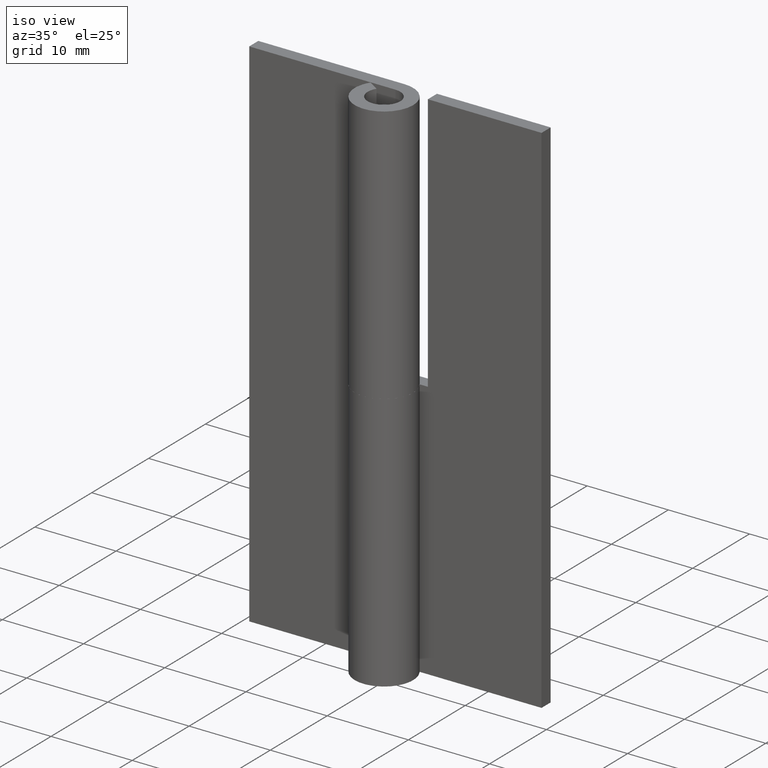
[diagram: clean part render]
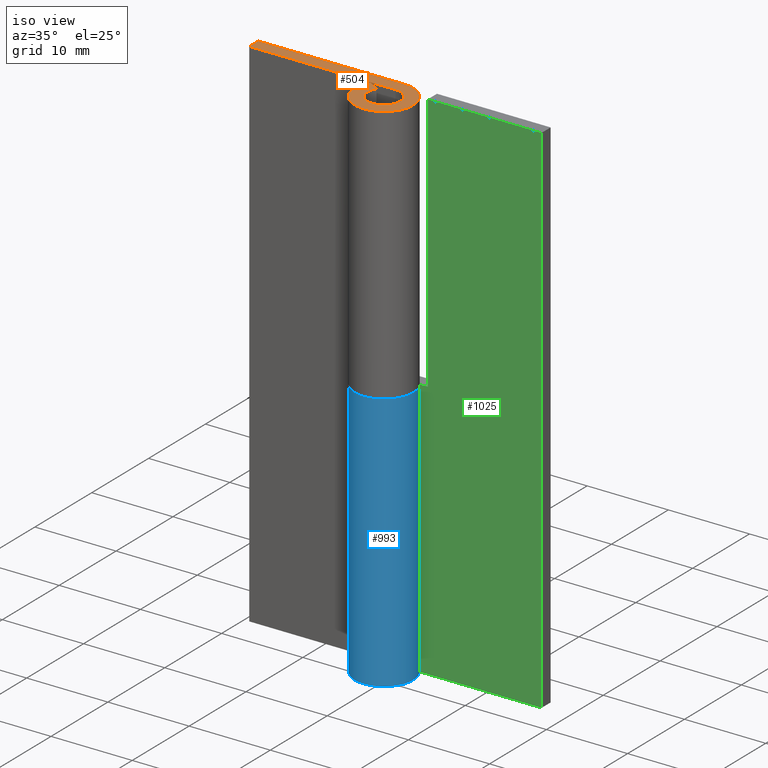
[diagram: same view with three faces highlighted in distinct colors, each labeled with its STEP entity id]
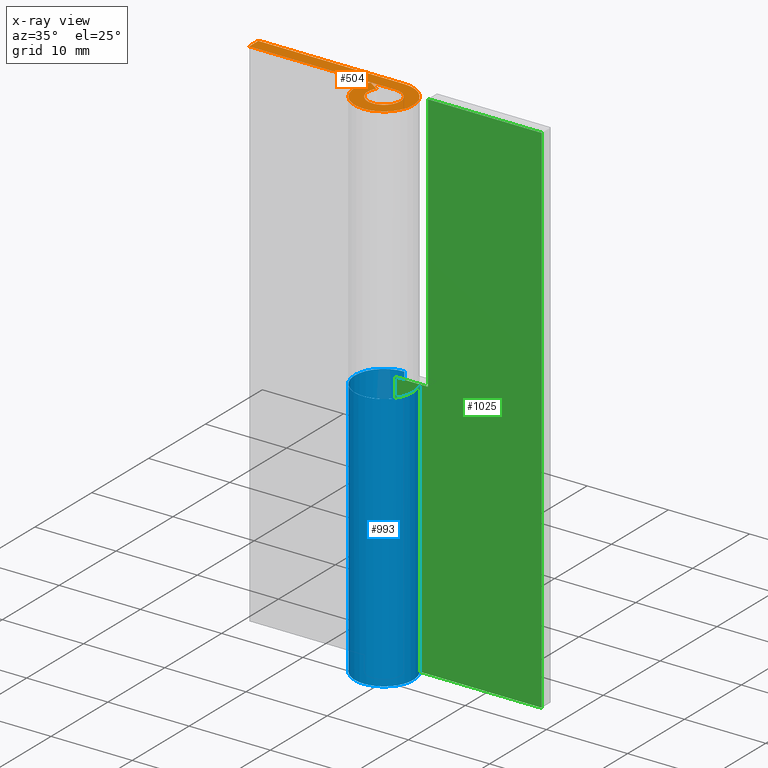
[diagram: x-ray of the same camera — body ghosted, the three highlighted faces saturated]
A machine part, iso view with three faces highlighted in distinct colors.
The next image is the same camera in x-ray (body ghosted, the three faces saturated) — at least one of them is partly hidden behind the body in this view.
Their STEP definitions:

[orange] entity #504 — the highlighted face is a freeform B-spline surface patch.
#427=CARTESIAN_POINT('',(-19.078902570801009,-3.958064993160935,64.000007999999994));
#428=CARTESIAN_POINT('',(4.678555055360605,-3.958064993160935,64.000007999999994));
#429=CARTESIAN_POINT('',(-19.078902570801009,3.959563155749652,64.000007999999994));
#430=CARTESIAN_POINT('',(4.678555055360605,3.959563155749652,64.000007999999994));
#431=B_SPLINE_SURFACE_WITH_KNOTS('',1,1,((#427,#429),(#428,#430)),.UNSPECIFIED.,.F.,.F.,.U.,(2,2),(2,2),(0.0,23.757457626161610),(0.0,7.917628148910588),.UNSPECIFIED.);
#432=CARTESIAN_POINT('',(-1.681186750152670,1.083333333333330,64.000008000000093));
#433=VERTEX_POINT('',#432);
#434=CARTESIAN_POINT('',(-3.026136150274805,1.950000000000000,64.000008000000093));
#435=VERTEX_POINT('',#434);
#436=CARTESIAN_POINT('',(-1.681186750152670,1.083333333333330,64.000008000000093));
#437=CARTESIAN_POINT('',(-3.026136150274805,1.950000000000000,64.000008000000093));
#438=QUASI_UNIFORM_CURVE('',1,(#436,#437),.UNSPECIFIED.,.F.,.U.);
#439=EDGE_CURVE('',#433,#435,#438,.T.);
#440=ORIENTED_EDGE('',*,*,#439,.T.);
#441=CARTESIAN_POINT('',(-0.003794732665983,3.599998000000000,64.000008000000093));
#442=VERTEX_POINT('',#441);
#443=CARTESIAN_POINT('',(-0.003794732665984,3.599997999999999,64.000008000000093));
#444=CARTESIAN_POINT('',(2.794410358292486,3.602947568378865,64.000008000000093));
#445=CARTESIAN_POINT('',(3.487741550519032,0.891997128237027,64.000008000000093));
#446=CARTESIAN_POINT('',(4.181072742745578,-1.818953311904812,64.000008000000093));
#447=CARTESIAN_POINT('',(1.725034387729875,-3.159787391763790,64.000008000000093));
#448=CARTESIAN_POINT('',(-0.731003967285830,-4.500621471622770,64.000008000000093));
#449=CARTESIAN_POINT('',(-2.636417691941365,-2.451387719969765,64.000008000000093));
#450=CARTESIAN_POINT('',(-4.541831416596898,-0.402153968316764,64.000008000000093));
#451=CARTESIAN_POINT('',(-3.026136150274803,1.949999999999999,64.000008000000093));
#459=(BOUNDED_CURVE()B_SPLINE_CURVE(2,(#443,#444,#445,#446,#447,#448,#449,#450,#451),.UNSPECIFIED.,.F.,.U.)B_SPLINE_CURVE_WITH_KNOTS((3,2,2,2,3),(0.0,0.250000000000000,0.500000000000000,0.750000000000000,1.0),.UNSPECIFIED.)CURVE()GEOMETRIC_REPRESENTATION_ITEM()RATIONAL_B_SPLINE_CURVE((1.0,0.789542785308575,1.0,0.789542785308575,1.0,0.789542785308575,1.0,0.789542785308575,1.0))REPRESENTATION_ITEM(''));
#460=EDGE_CURVE('',#442,#435,#459,.T.);
#461=ORIENTED_EDGE('',*,*,#460,.F.);
#462=CARTESIAN_POINT('',(-18.0,3.599998000000000,64.000008000000093));
#463=VERTEX_POINT('',#462);
#464=CARTESIAN_POINT('',(-0.003794732665983,3.599998000000000,64.000008000000093));
#465=CARTESIAN_POINT('',(-18.0,3.599998000000000,64.000008000000093));
#466=QUASI_UNIFORM_CURVE('',1,(#464,#465),.UNSPECIFIED.,.F.,.U.);
#467=EDGE_CURVE('',#442,#463,#466,.T.);
#468=ORIENTED_EDGE('',*,*,#467,.T.);
#469=CARTESIAN_POINT('',(-18.0,2.0,64.000008000000093));
#470=VERTEX_POINT('',#469);
#471=CARTESIAN_POINT('',(-18.0,3.599998000000000,64.000008000000093));
#472=CARTESIAN_POINT('',(-18.0,2.0,64.000008000000093));
#473=QUASI_UNIFORM_CURVE('',1,(#471,#472),.UNSPECIFIED.,.F.,.U.);
#474=EDGE_CURVE('',#463,#470,#473,.T.);
#475=ORIENTED_EDGE('',*,*,#474,.T.);
#476=CARTESIAN_POINT('',(0.0,2.0,64.000008000000093));
#477=VERTEX_POINT('',#476);
#478=CARTESIAN_POINT('',(-18.0,2.0,64.000008000000093));
#479=CARTESIAN_POINT('',(0.0,2.0,64.000008000000093));
#480=QUASI_UNIFORM_CURVE('',1,(#478,#479),.UNSPECIFIED.,.F.,.U.);
#481=EDGE_CURVE('',#470,#477,#480,.T.);
#482=ORIENTED_EDGE('',*,*,#481,.T.);
#483=CARTESIAN_POINT('',(0.0,2.0,64.000008000000093));
#484=CARTESIAN_POINT('',(1.554136556548023,2.000000000000000,64.000008000000079));
#485=CARTESIAN_POINT('',(1.938025359003881,0.494021971027481,64.000008000000093));
#486=CARTESIAN_POINT('',(2.321914161459739,-1.011956057945037,64.000008000000079));
#487=CARTESIAN_POINT('',(0.957427107756340,-1.755942292142122,64.000008000000093));
#488=CARTESIAN_POINT('',(-0.407059945947058,-2.499928526339207,64.000008000000079));
#489=CARTESIAN_POINT('',(-1.465035332114952,-1.361496043202048,64.000008000000093));
#490=CARTESIAN_POINT('',(-2.523010718282846,-0.223063560064887,64.000008000000079));
#491=CARTESIAN_POINT('',(-1.681186750152670,1.083333333333330,64.000008000000093));
#499=(BOUNDED_CURVE()B_SPLINE_CURVE(2,(#483,#484,#485,#486,#487,#488,#489,#490,#491),.UNSPECIFIED.,.F.,.U.)B_SPLINE_CURVE_WITH_KNOTS((3,2,2,2,3),(0.0,0.250000000000000,0.500000000000000,0.750000000000000,1.0),.UNSPECIFIED.)CURVE()GEOMETRIC_REPRESENTATION_ITEM()RATIONAL_B_SPLINE_CURVE((1.0,0.789623639943024,1.0,0.789623639943024,1.0,0.789623639943024,1.0,0.789623639943024,1.0))REPRESENTATION_ITEM(''));
#500=EDGE_CURVE('',#477,#433,#499,.T.);
#501=ORIENTED_EDGE('',*,*,#500,.T.);
#502=EDGE_LOOP('',(#440,#461,#468,#475,#482,#501));
#503=FACE_OUTER_BOUND('',#502,.T.);
#504=ADVANCED_FACE('',(#503),#431,.T.);

[blue] entity #993 — the highlighted face is a freeform B-spline surface patch.
#751=CARTESIAN_POINT('',(-0.003794732665984,3.599998000000000,32.000008000000001));
#752=VERTEX_POINT('',#751);
#758=CARTESIAN_POINT('',(3.026136150274800,1.950000000000000,32.000008000000051));
#759=VERTEX_POINT('',#758);
#760=CARTESIAN_POINT('',(-0.003794732665984,3.599997999999999,32.000008000000051));
#761=CARTESIAN_POINT('',(-2.800478292793388,3.597050035456120,32.000008000000058));
#762=CARTESIAN_POINT('',(-3.489147561616323,0.886481411687164,32.000008000000051));
#763=CARTESIAN_POINT('',(-4.177816830439257,-1.824087212081792,32.000008000000058));
#764=CARTESIAN_POINT('',(-1.721702721479357,-3.161603981976645,32.000008000000051));
#765=CARTESIAN_POINT('',(0.734411387480544,-4.499120751871498,32.000008000000058));
#766=CARTESIAN_POINT('',(2.637709320543041,-2.449997865370574,32.000008000000051));
#767=CARTESIAN_POINT('',(4.541007253605536,-0.400874978869650,32.000008000000058));
#768=CARTESIAN_POINT('',(3.026136150274803,1.949999999999999,32.000008000000051));
#776=(BOUNDED_CURVE()B_SPLINE_CURVE(2,(#760,#761,#762,#763,#764,#765,#766,#767,#768),.UNSPECIFIED.,.F.,.U.)B_SPLINE_CURVE_WITH_KNOTS((3,2,2,2,3),(0.0,0.250000000000000,0.500000000000000,0.750000000000000,1.0),.UNSPECIFIED.)CURVE()GEOMETRIC_REPRESENTATION_ITEM()RATIONAL_B_SPLINE_CURVE((1.0,0.789704480868727,1.0,0.789704480868727,1.0,0.789704480868727,1.0,0.789704480868727,1.0))REPRESENTATION_ITEM(''));
#777=EDGE_CURVE('',#752,#759,#776,.T.);
#843=CARTESIAN_POINT('',(3.026136150274800,1.950000000000000,0.0));
#844=VERTEX_POINT('',#843);
#850=CARTESIAN_POINT('',(-0.003794732665984,3.599998000000000,0.0));
#851=VERTEX_POINT('',#850);
#852=CARTESIAN_POINT('',(3.026136150274802,1.950000000000000,0.0));
#853=CARTESIAN_POINT('',(4.541007253605536,-0.400874978869648,0.0));
#854=CARTESIAN_POINT('',(2.637709320543042,-2.449997865370572,0.0));
#855=CARTESIAN_POINT('',(0.734411387480545,-4.499120751871497,0.0));
#856=CARTESIAN_POINT('',(-1.721702721479355,-3.161603981976646,0.0));
#857=CARTESIAN_POINT('',(-4.177816830439255,-1.824087212081795,0.0));
#858=CARTESIAN_POINT('',(-3.489147561616325,0.886481411687160,0.0));
#859=CARTESIAN_POINT('',(-2.800478292793393,3.597050035456119,0.0));
#860=CARTESIAN_POINT('',(-0.003794732665985,3.599997999999999,0.0));
#868=(BOUNDED_CURVE()B_SPLINE_CURVE(2,(#852,#853,#854,#855,#856,#857,#858,#859,#860),.UNSPECIFIED.,.F.,.U.)B_SPLINE_CURVE_WITH_KNOTS((3,2,2,2,3),(0.0,0.250000000000000,0.500000000000000,0.750000000000000,1.0),.UNSPECIFIED.)CURVE()GEOMETRIC_REPRESENTATION_ITEM()RATIONAL_B_SPLINE_CURVE((1.0,0.789704480868727,1.0,0.789704480868727,1.0,0.789704480868727,1.0,0.789704480868727,1.0))REPRESENTATION_ITEM(''));
#869=EDGE_CURVE('',#844,#851,#868,.T.);
#952=CARTESIAN_POINT('',(3.026136150274800,1.950000000000000,0.0));
#953=CARTESIAN_POINT('',(3.026136150274800,1.950000000000000,32.000008000000051));
#954=QUASI_UNIFORM_CURVE('',1,(#952,#953),.UNSPECIFIED.,.F.,.U.);
#955=EDGE_CURVE('',#844,#759,#954,.T.);
#961=CARTESIAN_POINT('',(2.964703270537402,2.042188658685780,-0.800000200000002));
#962=CARTESIAN_POINT('',(2.964703270537402,2.042188658685780,32.820008205000072));
#963=CARTESIAN_POINT('',(5.532086281403621,-1.684954167548272,-0.800000200000004));
#964=CARTESIAN_POINT('',(5.532086281403621,-1.684954167548272,32.820008205000072));
#965=CARTESIAN_POINT('',(1.322934369143241,-3.348110609722978,-0.800000200000002));
#966=CARTESIAN_POINT('',(1.322934369143241,-3.348110609722978,32.820008205000072));
#967=CARTESIAN_POINT('',(-2.886217543117140,-5.011267051897684,-0.800000200000004));
#968=CARTESIAN_POINT('',(-2.886217543117140,-5.011267051897684,32.820008205000072));
#969=CARTESIAN_POINT('',(-3.559894232870420,-0.535866635251648,-0.800000200000002));
#970=CARTESIAN_POINT('',(-3.559894232870420,-0.535866635251648,32.820008205000072));
#971=CARTESIAN_POINT('',(-4.233570922623700,3.939533781394387,-0.800000200000004));
#972=CARTESIAN_POINT('',(-4.233570922623700,3.939533781394387,32.820008205000072));
#973=CARTESIAN_POINT('',(0.278669552930452,3.589198138898094,-0.800000200000002));
#974=CARTESIAN_POINT('',(0.278669552930452,3.589198138898094,32.820008205000072));
#982=(BOUNDED_SURFACE()B_SPLINE_SURFACE(1,2,((#961,#963,#965,#967,#969,#971,#973),(#962,#964,#966,#968,#970,#972,#974)),.UNSPECIFIED.,.F.,.F.,.U.)B_SPLINE_SURFACE_WITH_KNOTS((2,2),(3,2,2,3),(0.0,33.620008405000071),(0.0,6.945735467773017,13.891470935546030,20.837206403319051),.UNSPECIFIED.)GEOMETRIC_REPRESENTATION_ITEM()RATIONAL_B_SPLINE_SURFACE(((1.0,0.622514636637620,1.0,0.622514636637620,1.0,0.622514636637620,1.0),(1.0,0.622514636637620,1.0,0.622514636637620,1.0,0.622514636637620,1.0)))REPRESENTATION_ITEM('')SURFACE());
#983=ORIENTED_EDGE('',*,*,#777,.F.);
#984=CARTESIAN_POINT('',(-0.003794732665984,3.599998000000000,0.0));
#985=CARTESIAN_POINT('',(-0.003794732665984,3.599998000000000,32.000008000000001));
#986=QUASI_UNIFORM_CURVE('',1,(#984,#985),.UNSPECIFIED.,.F.,.U.);
#987=EDGE_CURVE('',#851,#752,#986,.T.);
#988=ORIENTED_EDGE('',*,*,#987,.F.);
#989=ORIENTED_EDGE('',*,*,#869,.F.);
#990=ORIENTED_EDGE('',*,*,#955,.T.);
#991=EDGE_LOOP('',(#983,#988,#989,#990));
#992=FACE_OUTER_BOUND('',#991,.T.);
#993=ADVANCED_FACE('',(#992),#982,.T.);

[green] entity #1025 — the highlighted face is a freeform B-spline surface patch.
#716=CARTESIAN_POINT('',(4.0,2.0,64.000008000000093));
#717=VERTEX_POINT('',#716);
#730=CARTESIAN_POINT('',(4.0,2.0,32.000008000000001));
#731=VERTEX_POINT('',#730);
#737=CARTESIAN_POINT('',(4.0,2.0,64.000008000000093));
#738=CARTESIAN_POINT('',(4.0,2.0,32.000008000000001));
#739=QUASI_UNIFORM_CURVE('',1,(#737,#738),.UNSPECIFIED.,.F.,.U.);
#740=EDGE_CURVE('',#717,#731,#739,.T.);
#786=CARTESIAN_POINT('',(0.0,2.0,32.000008000000051));
#787=VERTEX_POINT('',#786);
#807=CARTESIAN_POINT('',(4.0,2.0,32.000008000000001));
#808=CARTESIAN_POINT('',(0.0,2.0,32.000008000000051));
#809=QUASI_UNIFORM_CURVE('',1,(#807,#808),.UNSPECIFIED.,.F.,.U.);
#810=EDGE_CURVE('',#731,#787,#809,.T.);
#822=CARTESIAN_POINT('',(0.0,2.0,0.0));
#823=VERTEX_POINT('',#822);
#878=CARTESIAN_POINT('',(18.0,2.0,0.0));
#879=VERTEX_POINT('',#878);
#885=CARTESIAN_POINT('',(0.0,2.0,0.0));
#886=CARTESIAN_POINT('',(18.0,2.0,0.0));
#887=QUASI_UNIFORM_CURVE('',1,(#885,#886),.UNSPECIFIED.,.F.,.U.);
#888=EDGE_CURVE('',#823,#879,#887,.T.);
#898=CARTESIAN_POINT('',(18.0,2.0,64.000008000000093));
#899=VERTEX_POINT('',#898);
#907=CARTESIAN_POINT('',(18.0,2.0,0.0));
#908=CARTESIAN_POINT('',(18.0,2.0,64.000008000000093));
#909=QUASI_UNIFORM_CURVE('',1,(#907,#908),.UNSPECIFIED.,.F.,.U.);
#910=EDGE_CURVE('',#879,#899,#909,.T.);
#927=CARTESIAN_POINT('',(4.0,2.0,64.000008000000093));
#928=CARTESIAN_POINT('',(18.0,2.0,64.000008000000093));
#929=QUASI_UNIFORM_CURVE('',1,(#927,#928),.UNSPECIFIED.,.F.,.U.);
#930=EDGE_CURVE('',#717,#899,#929,.T.);
#1008=CARTESIAN_POINT('',(-0.899099965112507,2.0,67.196808275555668));
#1009=CARTESIAN_POINT('',(-0.899099965112507,2.0,-3.196801992169553));
#1010=CARTESIAN_POINT('',(18.899100447910129,2.0,67.196808275555668));
#1011=CARTESIAN_POINT('',(18.899100447910129,2.0,-3.196801992169553));
#1012=B_SPLINE_SURFACE_WITH_KNOTS('',1,1,((#1008,#1010),(#1009,#1011)),.UNSPECIFIED.,.F.,.F.,.U.,(2,2),(2,2),(0.0,70.393610267725222),(0.0,19.798200413022631),.UNSPECIFIED.);
#1013=ORIENTED_EDGE('',*,*,#930,.F.);
#1014=ORIENTED_EDGE('',*,*,#740,.T.);
#1015=ORIENTED_EDGE('',*,*,#810,.T.);
#1016=CARTESIAN_POINT('',(0.0,2.0,0.0));
#1017=CARTESIAN_POINT('',(0.0,2.0,32.000008000000051));
#1018=QUASI_UNIFORM_CURVE('',1,(#1016,#1017),.UNSPECIFIED.,.F.,.U.);
#1019=EDGE_CURVE('',#823,#787,#1018,.T.);
#1020=ORIENTED_EDGE('',*,*,#1019,.F.);
#1021=ORIENTED_EDGE('',*,*,#888,.T.);
#1022=ORIENTED_EDGE('',*,*,#910,.T.);
#1023=EDGE_LOOP('',(#1013,#1014,#1015,#1020,#1021,#1022));
#1024=FACE_OUTER_BOUND('',#1023,.T.);
#1025=ADVANCED_FACE('',(#1024),#1012,.T.);